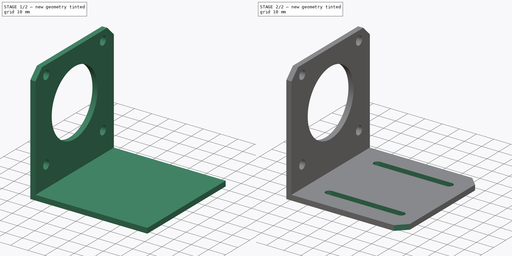
[diagram: build sequence overview — one tinted view per stage of 2, left to right]
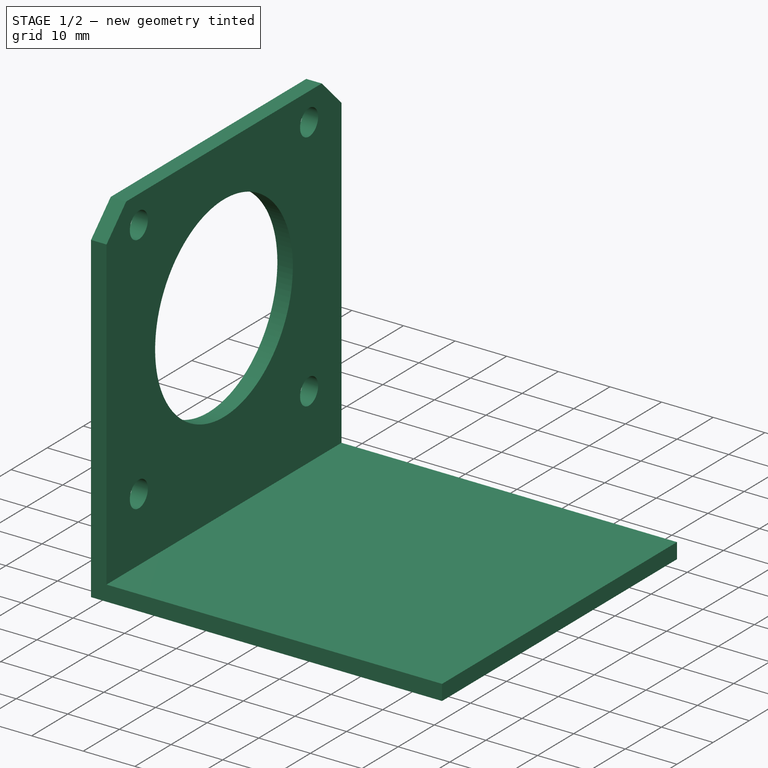
[diagram: stage 1 of 2 — iso view after this stage's code; geometry added in this stage tinted green]
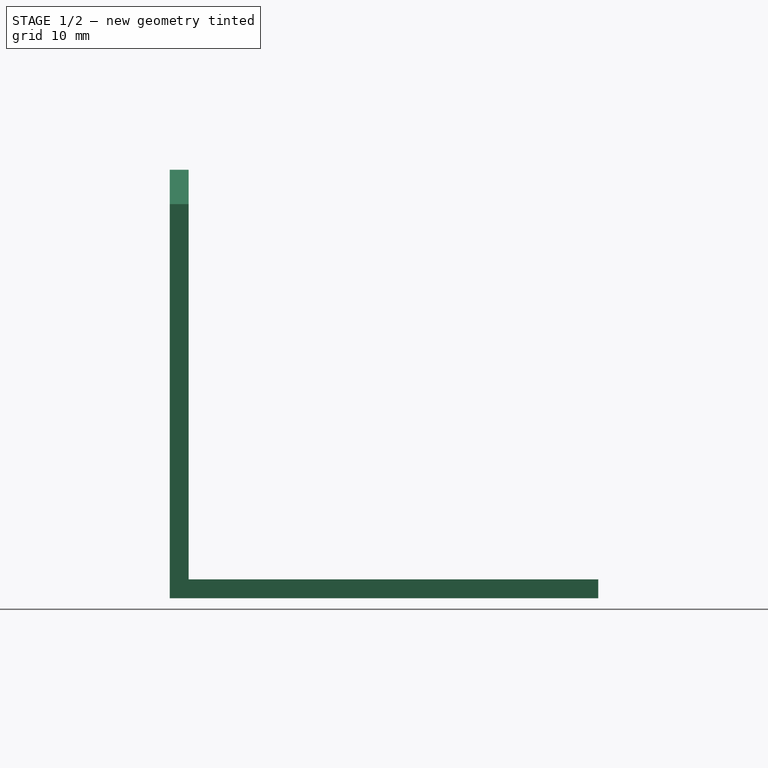
[diagram: stage 1 of 2 — front view after this stage's code; geometry added in this stage tinted green]
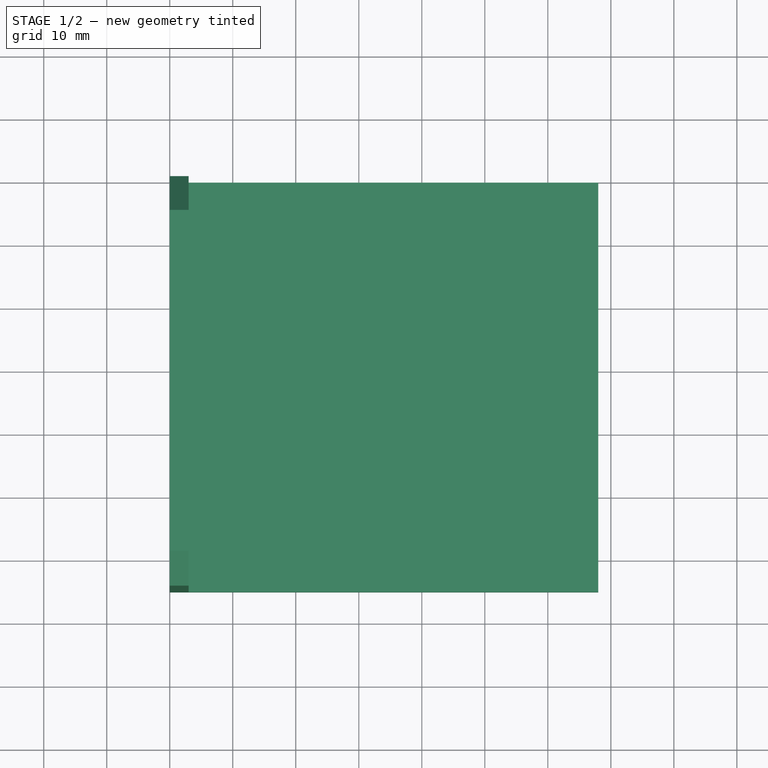
[diagram: stage 1 of 2 — top view after this stage's code; geometry added in this stage tinted green]
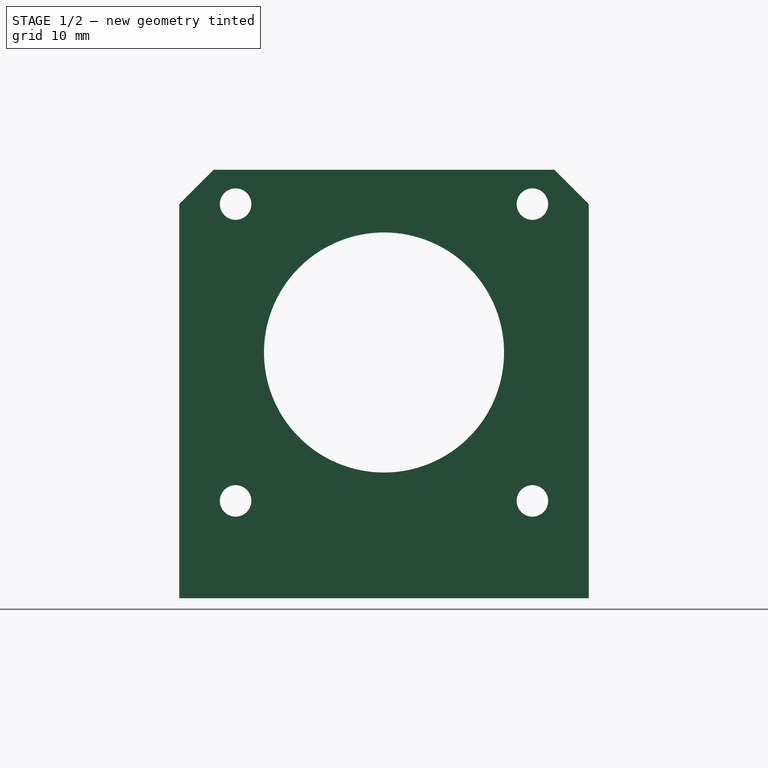
[diagram: stage 1 of 2 — right view after this stage's code; geometry added in this stage tinted green]
FCSTD DOCUMENT  (FreeCAD 0.19R)
Label: stpm_bracket
License: All rights reserved
LicenseURL: http://en.wikipedia.org/wiki/All_rights_reserved
objects: Sketcher::SketchObject×3, PartDesign::Pocket×2, PartDesign::CoordinateSystem×2, PartDesign::Pad×1, PartDesign::Body×1
note: 12 computed .brp shape members not serialized (recipe doc carries the construction recipe); baked Part::Feature solids carry a one-line shape summary decoded from their .brp

FEATURE [Sketcher::SketchObject] Sketch
  FullyConstrained = true
  MapMode = 5
  Placement = pos=(0,0,0) rot=(1,0,0;1.5708rad)
  Support = -> [XZ_Plane]
  sketch-geometry (6):
    g0: LineSegment StartX=0 StartY=0 StartZ=0 EndX=0 EndY=68 EndZ=0
    g1: LineSegment StartX=0 StartY=68 StartZ=0 EndX=3 EndY=68 EndZ=0
    g2: LineSegment StartX=3 StartY=68 StartZ=0 EndX=3 EndY=3 EndZ=0
    g3: LineSegment StartX=3 StartY=3 StartZ=0 EndX=68 EndY=3 EndZ=0
    g4: LineSegment StartX=68 StartY=3 StartZ=0 EndX=68 EndY=0 EndZ=0
    g5: LineSegment StartX=68 StartY=0 StartZ=0 EndX=0 EndY=0 EndZ=0
  constraints (17):
    c: Coincident(g-1,g0)
    c: Vertical(g0)
    c: Coincident(g0,g1)
    c: Horizontal(g1)
    c: Coincident(g1,g2)
    c: Vertical(g2)
    c: Coincident(g2,g3)
    c: Horizontal(g3)
    c: Coincident(g3,g4)
    c: Vertical(g4)
    c: Coincident(g4,g5)
    c: Coincident(g5,g0)
    c: Horizontal(g5)
    c: DistanceY(g0,g0) = 68
    c: DistanceX(g5,g5) = 68
    c: DistanceY(g4,g3) = 3
    c: DistanceX(g0,g1) = 3
FEATURE [PartDesign::Pad] Pad
  Direction = (1,1,1)
  Length = 65
  Length2 = 100
  Placement = pos=(0,0,0) rot=(1,0,0;1.5708rad)
  Profile = -> Sketch
  Type = 0
FEATURE [Sketcher::SketchObject] Sketch001
  ExternalGeometry = -> [Pad]
  FullyConstrained = true
  MapMode = 5
  Placement = pos=(0,0,0) rot=(0.707107,0,-0.707107;3.14159rad)
  Support = -> [Pad]
  sketch-geometry (15):
    g0: Circle CenterX=-39 CenterY=32.5 CenterZ=0 NormalX=0 NormalY=0 NormalZ=1 AngleXU=0 Radius=19.05
    g1: Circle CenterX=-62.55 CenterY=56.05 CenterZ=0 NormalX=0 NormalY=0 NormalZ=1 AngleXU=0 Radius=2.5
    g2: Circle CenterX=-62.55 CenterY=8.95 CenterZ=0 NormalX=0 NormalY=0 NormalZ=1 AngleXU=0 Radius=2.5
    g3: Circle CenterX=-15.45 CenterY=8.95 CenterZ=0 NormalX=0 NormalY=0 NormalZ=1 AngleXU=0 Radius=2.5
    g4: LineSegment StartX=-62.55 StartY=56.05 StartZ=0 EndX=-15.45 EndY=56.05 EndZ=0
    g5: LineSegment StartX=-15.45 StartY=56.05 StartZ=0 EndX=-15.45 EndY=8.95 EndZ=0
    g6: LineSegment StartX=-15.45 StartY=8.95 StartZ=0 EndX=-62.55 EndY=8.95 EndZ=0
    g7: LineSegment StartX=-62.55 StartY=8.95 StartZ=0 EndX=-62.55 EndY=56.05 EndZ=0
    g8: Circle CenterX=-15.45 CenterY=56.05 CenterZ=0 NormalX=0 NormalY=0 NormalZ=1 AngleXU=0 Radius=2.5
    g9: LineSegment StartX=-62.55 StartY=0 StartZ=0 EndX=-68 EndY=-4.53e-14 EndZ=0
    g10: LineSegment StartX=-68 StartY=-4.53e-14 StartZ=0 EndX=-68 EndY=5.45 EndZ=0
    g11: LineSegment StartX=-68 StartY=5.45 StartZ=0 EndX=-62.55 EndY=0 EndZ=0
    g12: LineSegment StartX=-68 StartY=59.55 StartZ=0 EndX=-68 EndY=65 EndZ=0
    g13: LineSegment StartX=-68 StartY=65 StartZ=0 EndX=-62.55 EndY=65 EndZ=0
    g14: LineSegment StartX=-62.55 StartY=65 StartZ=0 EndX=-68 EndY=59.55 EndZ=0
  constraints (39):
    c: Equal(g1,g2)
    c: Diameter(g3) = 5
    c: Horizontal(g4)
    c: Horizontal(g6)
    c: Vertical(g5)
    c: Vertical(g7)
    c: DistanceX(g6,g6) = 47.1
    c: Diameter(g0) = 38.1
    c: Equal(g8,g1)
    c: Equal(g3,g8)
    c: Coincident(g7,g1)
    c: Coincident(g4,g1)
    c: Coincident(g7,g2)
    c: Coincident(g6,g2)
    c: Coincident(g3,g6)
    c: Coincident(g5,g3)
    c: Coincident(g8,g5)
    c: Coincident(g4,g8)
    c: Equal(g5,g6)
    c: DistanceY(g-1,g0) = 32.5
    c: DistanceX(g-3,g0) = 29
    c: DistanceX(g2,g0) = 23.55
    c: DistanceY(g3,g0) = 23.55
    c: PointOnObject(g9,g-1)
    c: Coincident(g9,g-3)
    c: Coincident(g9,g10)
    c: PointOnObject(g10,g-3)
    c: Coincident(g10,g11)
    c: Coincident(g11,g9)
    c: PointOnObject(g12,g-3)
    c: Coincident(g12,g-3)
    c: Coincident(g12,g13)
    c: Horizontal(g13)
    c: Coincident(g13,g14)
    c: Coincident(g14,g12)
    c: Equal(g12,g13)
    c: Equal(g13,g10)
    c: Equal(g10,g9)
    c: DistanceY(g10,g10) = 5.45
FEATURE [PartDesign::Pocket] Pocket
  BaseFeature = -> Pad
  Length = 3
  Length2 = 100
  Placement = pos=(0,0,0) rot=(1,0,0;1.5708rad)
  Profile = -> Sketch001
  Type = 0
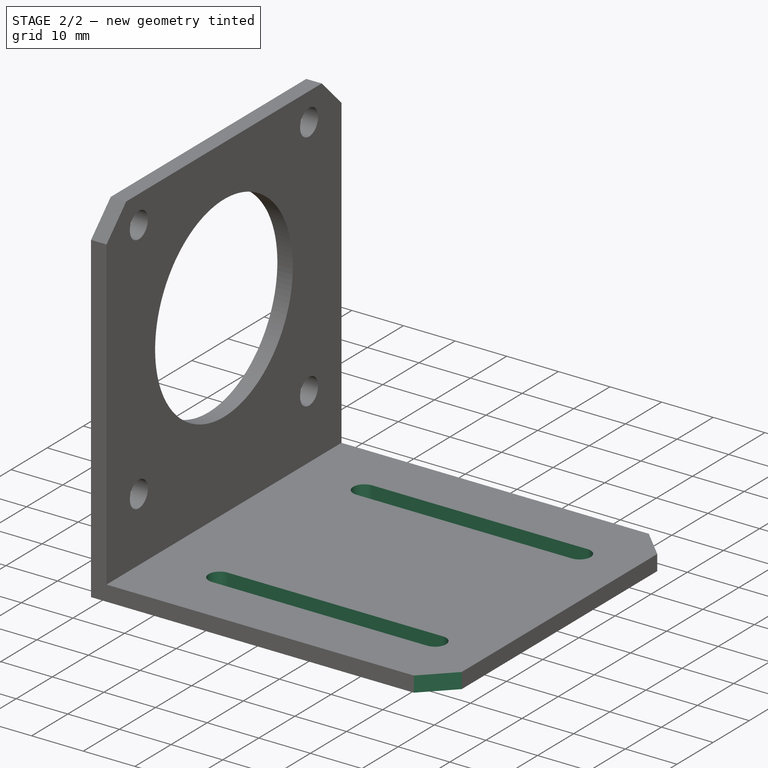
[diagram: stage 2 of 2 — iso view after this stage's code; geometry added in this stage tinted green]
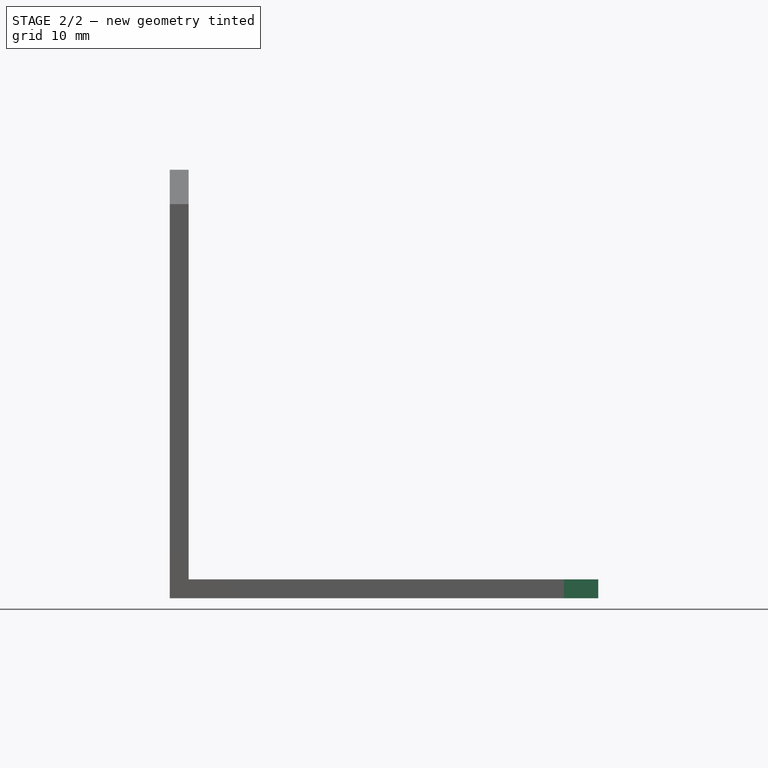
[diagram: stage 2 of 2 — front view after this stage's code; geometry added in this stage tinted green]
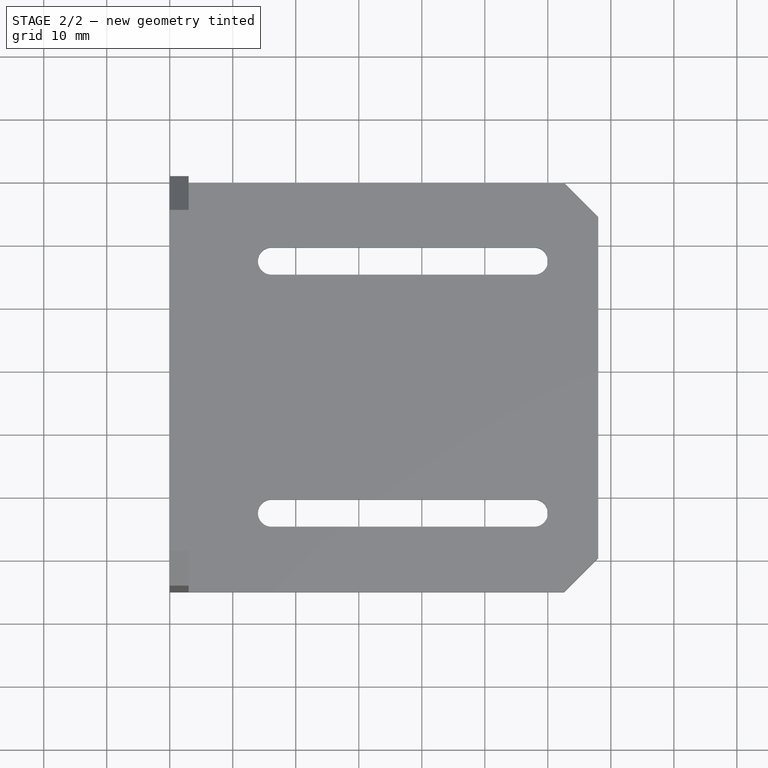
[diagram: stage 2 of 2 — top view after this stage's code; geometry added in this stage tinted green]
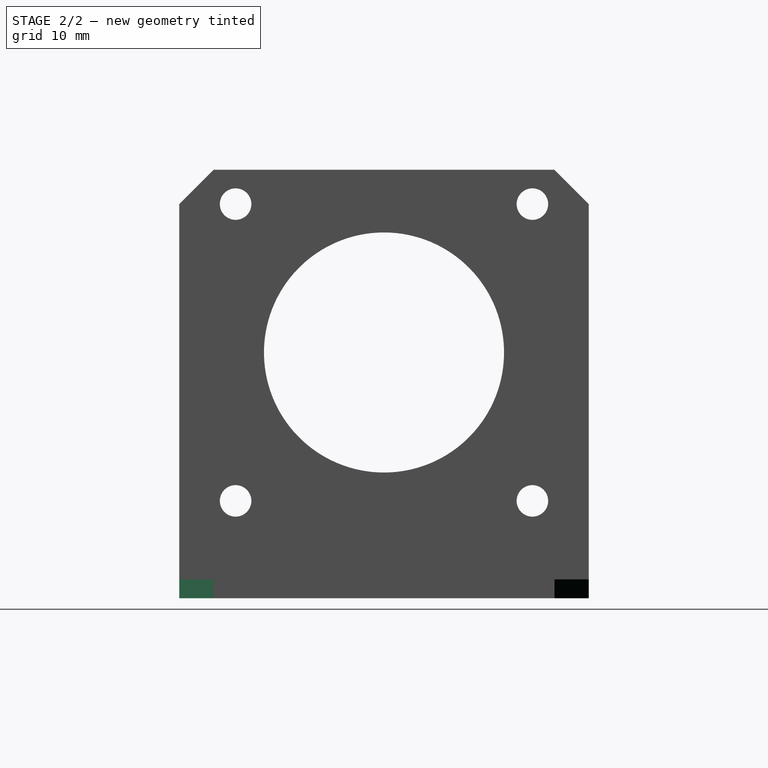
[diagram: stage 2 of 2 — right view after this stage's code; geometry added in this stage tinted green]
FEATURE [Sketcher::SketchObject] Sketch002
  ExternalGeometry = -> [Pocket]
  FullyConstrained = true
  MapMode = 5
  Placement = pos=(0,0,0) rot=(1,0,0;3.14159rad)
  Support = -> [Pocket]
  sketch-geometry (14):
    g0: LineSegment StartX=62.55 StartY=65 StartZ=0 EndX=68 EndY=65 EndZ=0
    g1: LineSegment StartX=68 StartY=65 StartZ=0 EndX=68 EndY=59.55 EndZ=0
    g2: LineSegment StartX=68 StartY=59.55 StartZ=0 EndX=62.55 EndY=65 EndZ=0
    g3: LineSegment StartX=62.55 StartY=0 StartZ=0 EndX=68 EndY=0 EndZ=0
    g4: LineSegment StartX=68 StartY=0 StartZ=0 EndX=68 EndY=5.45 EndZ=0
    g5: LineSegment StartX=68 StartY=5.45 StartZ=0 EndX=62.55 EndY=0 EndZ=0
    g6: ArcOfCircle CenterX=16.15 CenterY=52.45 CenterZ=0 NormalX=0 NormalY=0 NormalZ=1 AngleXU=0 Radius=2.15 StartAngle=1.5708 EndAngle=4.71239
    g7: ArcOfCircle CenterX=57.85 CenterY=52.45 CenterZ=0 NormalX=0 NormalY=0 NormalZ=1 AngleXU=0 Radius=2.15 StartAngle=4.71239 EndAngle=7.85398
    g8: LineSegment StartX=16.15 StartY=50.3 StartZ=0 EndX=57.85 EndY=50.3 EndZ=0
    g9: LineSegment StartX=16.15 StartY=54.6 StartZ=0 EndX=57.85 EndY=54.6 EndZ=0
    g10: ArcOfCircle CenterX=16.15 CenterY=12.45 CenterZ=0 NormalX=0 NormalY=0 NormalZ=1 AngleXU=0 Radius=2.15 StartAngle=1.5708 EndAngle=4.71239
    g11: ArcOfCircle CenterX=57.85 CenterY=12.45 CenterZ=0 NormalX=0 NormalY=0 NormalZ=1 AngleXU=0 Radius=2.15 StartAngle=4.71239 EndAngle=7.85398
    g12: LineSegment StartX=16.15 StartY=10.3 StartZ=0 EndX=57.85 EndY=10.3 EndZ=0
    g13: LineSegment StartX=16.15 StartY=14.6 StartZ=0 EndX=57.85 EndY=14.6 EndZ=0
  constraints (36):
    c: PointOnObject(g0,g-4)
    c: Coincident(g0,g-4)
    c: Coincident(g0,g1)
    c: PointOnObject(g1,g-3)
    c: Coincident(g1,g2)
    c: Coincident(g2,g0)
    c: PointOnObject(g3,g-1)
    c: Coincident(g3,g-3)
    c: Coincident(g3,g4)
    c: PointOnObject(g4,g-3)
    c: Coincident(g4,g5)
    c: Coincident(g5,g3)
    c: Equal(g1,g0)
    c: Equal(g0,g4)
    c: Equal(g4,g3)
    c: DistanceY(g4,g4) = 5.45
    c: Tangent(g6,g9) = 1.5708
    c: Tangent(g6,g8) = -1.5708
    c: Tangent(g8,g7) = -1.5708
    c: Tangent(g9,g7) = 1.5708
    c: Horizontal(g8)
    c: Equal(g6,g7)
    c: Tangent(g10,g13) = 1.5708
    c: Tangent(g10,g12) = -1.5708
    c: Tangent(g12,g11) = -1.5708
    c: Tangent(g13,g11) = 1.5708
    c: Horizontal(g12)
    c: Equal(g10,g11)
    c: Equal(g13,g8)
    c: Equal(g11,g7)
    c: DistanceY(g6,g6) = 4.3
    c: DistanceY(g-1,g10) = 10.3
    c: DistanceY(g10,g6) = 35.7
    c: DistanceX(g6,g7) = 41.7
    c: DistanceX(g7,g0) = 10.15
    c: DistanceX(g11,g3) = 10.15
FEATURE [PartDesign::Pocket] Pocket001
  BaseFeature = -> Pocket
  Length = 3
  Length2 = 100
  Placement = pos=(0,0,0) rot=(1,0,0;1.5708rad)
  Profile = -> Sketch002
  Type = 0
FEATURE [PartDesign::CoordinateSystem] LCS_h1
  AttacherType = Attacher::AttachEngine3D
  MapMode = 11
  Placement = pos=(3,-56.05,62.55) rot=(0.57735,-0.57735,-0.57735;2.0944rad)
  Support = -> [Pocket001]
FEATURE [PartDesign::CoordinateSystem] LCS_h2
  AttacherType = Attacher::AttachEngine3D
  MapMode = 11
  Placement = pos=(3,-8.95,62.55) rot=(0.57735,-0.57735,-0.57735;2.0944rad)
  Support = -> [Pocket001]
FEATURE [PartDesign::Body] Body
  Group = -> [Sketch,Pad,Sketch001,Pocket,Sketch002,Pocket001,LCS_h1,LCS_h2]
  Origin = -> Origin
  Tip = -> Pocket001
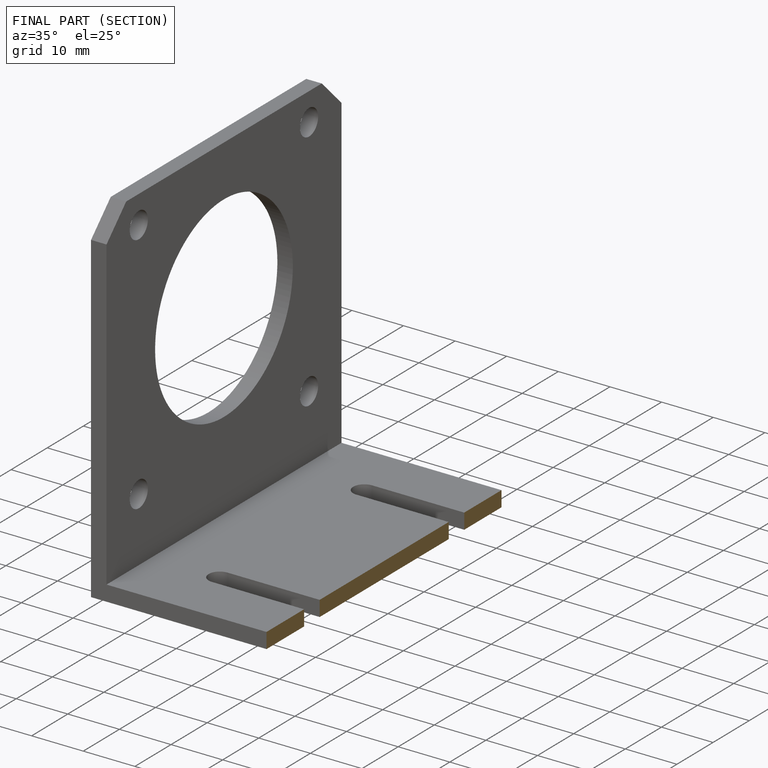
[diagram: finished part — half-section view (interior)]
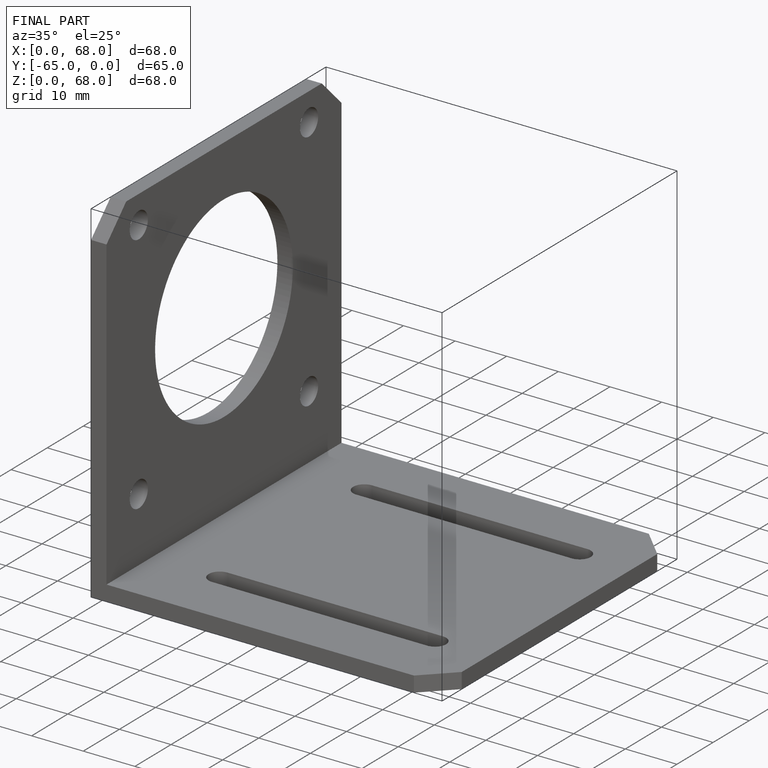
[diagram: finished part — iso view with bounding-box wireframe]
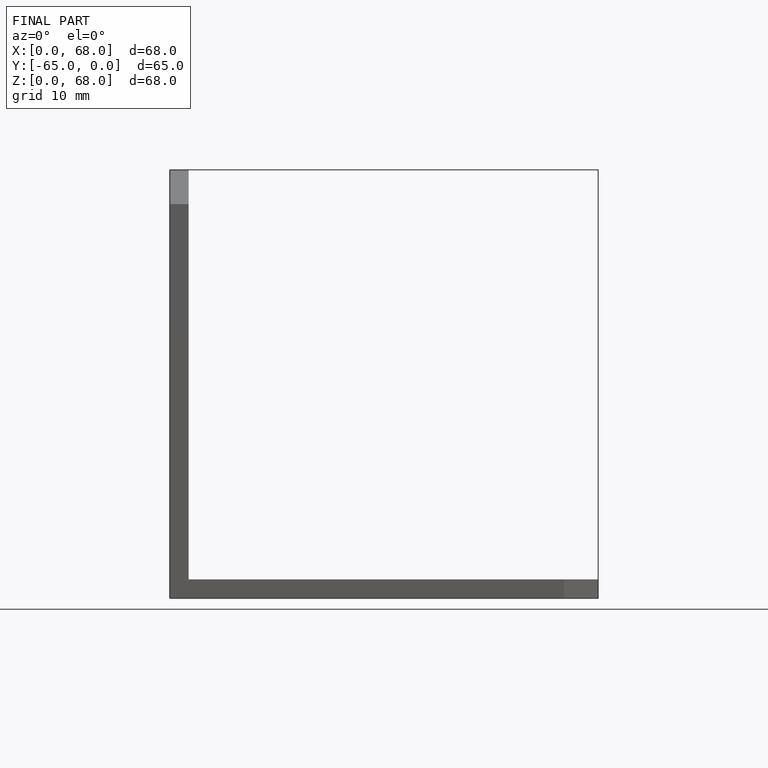
[diagram: finished part — front view with bounding-box wireframe]
